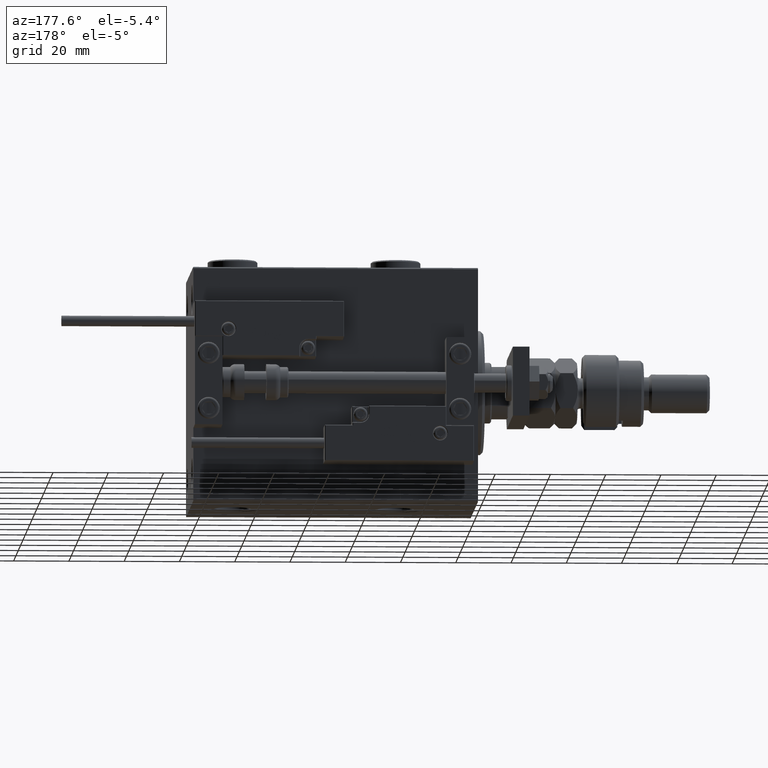
[diagram: clean part render]
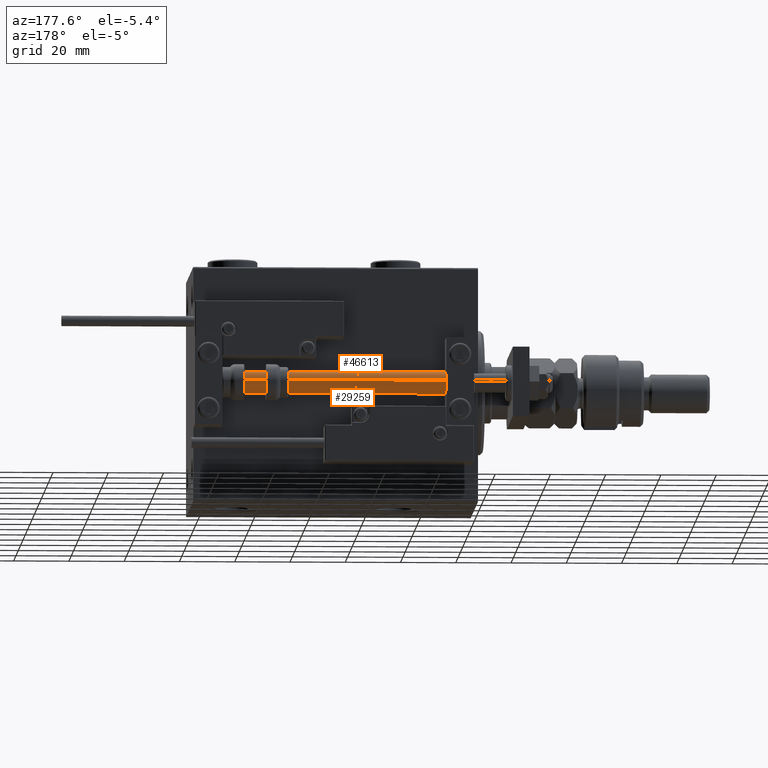
[diagram: same view with one multi-face feature highlighted, each face labeled with its STEP entity id]
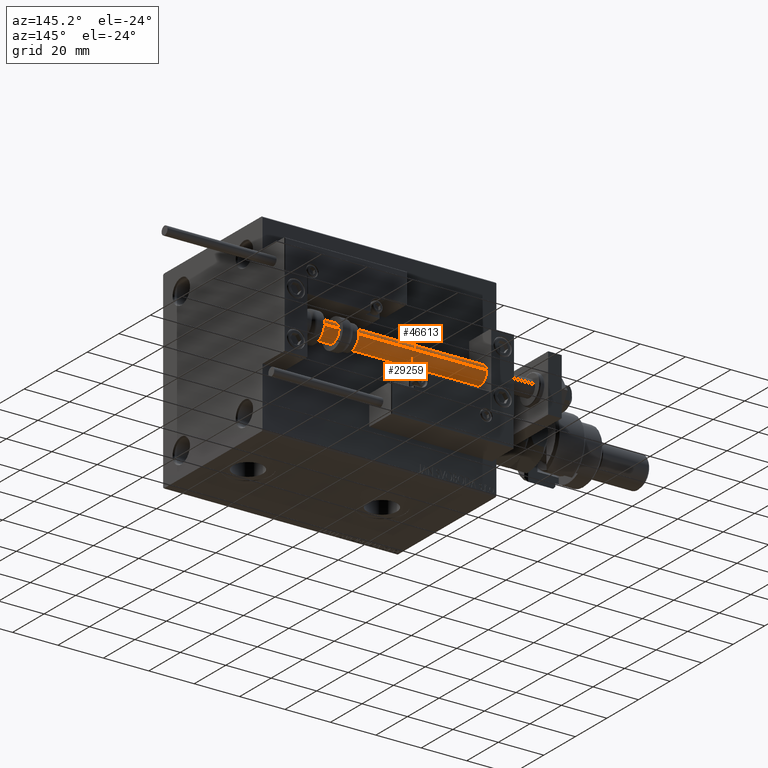
[diagram: same view with one multi-face feature highlighted, each face labeled with its STEP entity id]
A machine part, auxiliary view. The highlighted faces form ONE feature: a constant-radius fillet chain: 2 tangent blend faces with common blend radius 4 mm. The faces share edges in the B-rep.
A second angle (auxiliary view) of the same feature is appended — it is thin or edge-on in the first view.
Their STEP definitions:
[1] entity #29259 (Cylinder):
#4248 = CYLINDRICAL_SURFACE ( 'NONE', #37027, 4.000000000000000000 ) ;
#5477 = VERTEX_POINT ( 'NONE', #55235 ) ;
#7866 = AXIS2_PLACEMENT_3D ( 'NONE', #37021, #15468, #20210 ) ;
#7873 = DIRECTION ( 'NONE',  ( 1.000000000000000000, 0.000000000000000000, 0.000000000000000000 ) ) ;
#8300 = AXIS2_PLACEMENT_3D ( 'NONE', #37282, #41202, #7873 ) ;
#10463 = EDGE_CURVE ( 'NONE', #40195, #5477, #30244, .T. ) ;
#11565 = EDGE_CURVE ( 'NONE', #5477, #12874, #15271, .T. ) ;
#12874 = VERTEX_POINT ( 'NONE', #34237 ) ;
#13204 = CARTESIAN_POINT ( 'NONE',  ( 0.000000000000000000, 0.000000000000000000, 103.0000000000000000 ) ) ;
#15271 = LINE ( 'NONE', #36555, #45473 ) ;
#15468 = DIRECTION ( 'NONE',  ( 0.000000000000000000, 0.000000000000000000, 1.000000000000000000 ) ) ;
#16762 = VECTOR ( 'NONE', #33455, 1000.000000000000000 ) ;
#19702 = ORIENTED_EDGE ( 'NONE', *, *, #55318, .T. ) ;
#20210 = DIRECTION ( 'NONE',  ( 1.000000000000000000, 0.000000000000000000, 0.000000000000000000 ) ) ;
#21579 = ORIENTED_EDGE ( 'NONE', *, *, #39352, .T. ) ;
#21592 = DIRECTION ( 'NONE',  ( -0.000000000000000000, -0.000000000000000000, -1.000000000000000000 ) ) ;
#26299 = EDGE_LOOP ( 'NONE', ( #54013, #44546, #19702, #21579 ) ) ;
#29259 = ADVANCED_FACE ( 'NONE', ( #50453 ), #4248, .T. ) ;
#30244 = CIRCLE ( 'NONE', #7866, 4.000000000000000000 ) ;
#33094 = CARTESIAN_POINT ( 'NONE',  ( -4.000000000000000000, 0.000000000000000000, 103.0000000000000000 ) ) ;
#33455 = DIRECTION ( 'NONE',  ( -0.000000000000000000, -0.000000000000000000, -1.000000000000000000 ) ) ;
#34237 = CARTESIAN_POINT ( 'NONE',  ( 4.000000000000000000, 4.898587196589412829E-16, 2.000000000000029310 ) ) ;
#34495 = DIRECTION ( 'NONE',  ( -1.000000000000000000, 0.000000000000000000, 0.000000000000000000 ) ) ;
#34813 = CARTESIAN_POINT ( 'NONE',  ( -4.000000000000000000, 0.000000000000000000, 2.000000000000029310 ) ) ;
#36540 = CARTESIAN_POINT ( 'NONE',  ( -4.000000000000000000, 0.000000000000000000, 103.0000000000000000 ) ) ;
#36555 = CARTESIAN_POINT ( 'NONE',  ( 4.000000000000000000, 4.898587196589412829E-16, 103.0000000000000000 ) ) ;
#37021 = CARTESIAN_POINT ( 'NONE',  ( 0.000000000000000000, 0.000000000000000000, 103.0000000000000000 ) ) ;
#37027 = AXIS2_PLACEMENT_3D ( 'NONE', #13204, #21592, #34495 ) ;
#37282 = CARTESIAN_POINT ( 'NONE',  ( 0.000000000000000000, 0.000000000000000000, 2.000000000000029310 ) ) ;
#39352 = EDGE_CURVE ( 'NONE', #45103, #12874, #53034, .T. ) ;
#40195 = VERTEX_POINT ( 'NONE', #33094 ) ;
#41202 = DIRECTION ( 'NONE',  ( -0.000000000000000000, -0.000000000000000000, 1.000000000000000000 ) ) ;
#44546 = ORIENTED_EDGE ( 'NONE', *, *, #10463, .F. ) ;
#45103 = VERTEX_POINT ( 'NONE', #34813 ) ;
#45473 = VECTOR ( 'NONE', #53918, 1000.000000000000000 ) ;
#45491 = LINE ( 'NONE', #36540, #16762 ) ;
#50453 = FACE_OUTER_BOUND ( 'NONE', #26299, .T. ) ;
#53034 = CIRCLE ( 'NONE', #8300, 4.000000000000000000 ) ;
#53918 = DIRECTION ( 'NONE',  ( -0.000000000000000000, -0.000000000000000000, -1.000000000000000000 ) ) ;
#54013 = ORIENTED_EDGE ( 'NONE', *, *, #11565, .F. ) ;
#55235 = CARTESIAN_POINT ( 'NONE',  ( 4.000000000000000000, 4.898587196589412829E-16, 103.0000000000000000 ) ) ;
#55318 = EDGE_CURVE ( 'NONE', #40195, #45103, #45491, .T. ) ;
[2] entity #46613 (Cylinder):
#3507 = CIRCLE ( 'NONE', #42868, 4.000000000000000000 ) ;
#3907 = CARTESIAN_POINT ( 'NONE',  ( 0.000000000000000000, 0.000000000000000000, 103.0000000000000000 ) ) ;
#5477 = VERTEX_POINT ( 'NONE', #55235 ) ;
#5849 = EDGE_LOOP ( 'NONE', ( #33237, #16500, #53184, #49776 ) ) ;
#8656 = DIRECTION ( 'NONE',  ( -1.000000000000000000, 0.000000000000000000, 0.000000000000000000 ) ) ;
#9366 = CARTESIAN_POINT ( 'NONE',  ( 0.000000000000000000, 0.000000000000000000, 103.0000000000000000 ) ) ;
#11565 = EDGE_CURVE ( 'NONE', #5477, #12874, #15271, .T. ) ;
#12874 = VERTEX_POINT ( 'NONE', #34237 ) ;
#13290 = DIRECTION ( 'NONE',  ( 1.000000000000000000, 0.000000000000000000, 0.000000000000000000 ) ) ;
#15271 = LINE ( 'NONE', #36555, #45473 ) ;
#15860 = EDGE_CURVE ( 'NONE', #12874, #45103, #3507, .T. ) ;
#16500 = ORIENTED_EDGE ( 'NONE', *, *, #11565, .T. ) ;
#16762 = VECTOR ( 'NONE', #33455, 1000.000000000000000 ) ;
#17446 = EDGE_CURVE ( 'NONE', #5477, #40195, #46504, .T. ) ;
#19735 = CARTESIAN_POINT ( 'NONE',  ( 0.000000000000000000, 0.000000000000000000, 2.000000000000029310 ) ) ;
#20977 = DIRECTION ( 'NONE',  ( -0.000000000000000000, -0.000000000000000000, -1.000000000000000000 ) ) ;
#26698 = DIRECTION ( 'NONE',  ( 0.000000000000000000, 0.000000000000000000, 1.000000000000000000 ) ) ;
#28416 = DIRECTION ( 'NONE',  ( 1.000000000000000000, 0.000000000000000000, 0.000000000000000000 ) ) ;
#30394 = AXIS2_PLACEMENT_3D ( 'NONE', #9366, #26698, #13290 ) ;
#33094 = CARTESIAN_POINT ( 'NONE',  ( -4.000000000000000000, 0.000000000000000000, 103.0000000000000000 ) ) ;
#33237 = ORIENTED_EDGE ( 'NONE', *, *, #17446, .F. ) ;
#33455 = DIRECTION ( 'NONE',  ( -0.000000000000000000, -0.000000000000000000, -1.000000000000000000 ) ) ;
#34149 = CYLINDRICAL_SURFACE ( 'NONE', #51390, 4.000000000000000000 ) ;
#34237 = CARTESIAN_POINT ( 'NONE',  ( 4.000000000000000000, 4.898587196589412829E-16, 2.000000000000029310 ) ) ;
#34813 = CARTESIAN_POINT ( 'NONE',  ( -4.000000000000000000, 0.000000000000000000, 2.000000000000029310 ) ) ;
#36540 = CARTESIAN_POINT ( 'NONE',  ( -4.000000000000000000, 0.000000000000000000, 103.0000000000000000 ) ) ;
#36555 = CARTESIAN_POINT ( 'NONE',  ( 4.000000000000000000, 4.898587196589412829E-16, 103.0000000000000000 ) ) ;
#38334 = FACE_OUTER_BOUND ( 'NONE', #5849, .T. ) ;
#40195 = VERTEX_POINT ( 'NONE', #33094 ) ;
#42868 = AXIS2_PLACEMENT_3D ( 'NONE', #19735, #49704, #28416 ) ;
#45103 = VERTEX_POINT ( 'NONE', #34813 ) ;
#45473 = VECTOR ( 'NONE', #53918, 1000.000000000000000 ) ;
#45491 = LINE ( 'NONE', #36540, #16762 ) ;
#46504 = CIRCLE ( 'NONE', #30394, 4.000000000000000000 ) ;
#46613 = ADVANCED_FACE ( 'NONE', ( #38334 ), #34149, .T. ) ;
#49704 = DIRECTION ( 'NONE',  ( -0.000000000000000000, -0.000000000000000000, 1.000000000000000000 ) ) ;
#49776 = ORIENTED_EDGE ( 'NONE', *, *, #55318, .F. ) ;
#51390 = AXIS2_PLACEMENT_3D ( 'NONE', #3907, #20977, #8656 ) ;
#53184 = ORIENTED_EDGE ( 'NONE', *, *, #15860, .T. ) ;
#53918 = DIRECTION ( 'NONE',  ( -0.000000000000000000, -0.000000000000000000, -1.000000000000000000 ) ) ;
#55235 = CARTESIAN_POINT ( 'NONE',  ( 4.000000000000000000, 4.898587196589412829E-16, 103.0000000000000000 ) ) ;
#55318 = EDGE_CURVE ( 'NONE', #40195, #45103, #45491, .T. ) ;